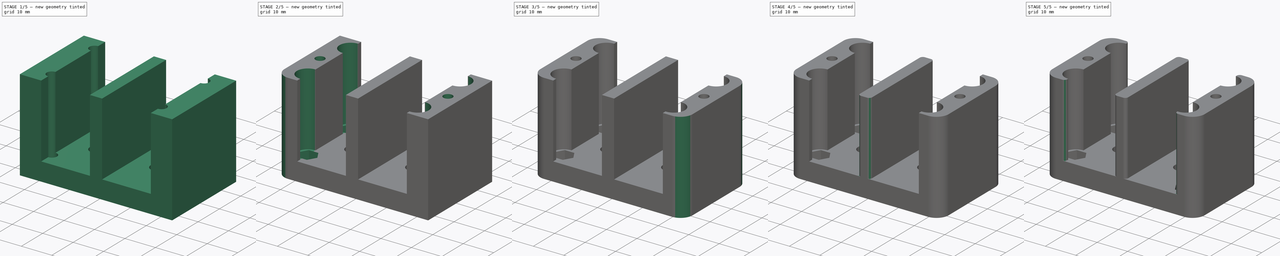
[diagram: build sequence overview — one tinted view per stage of 5, left to right]
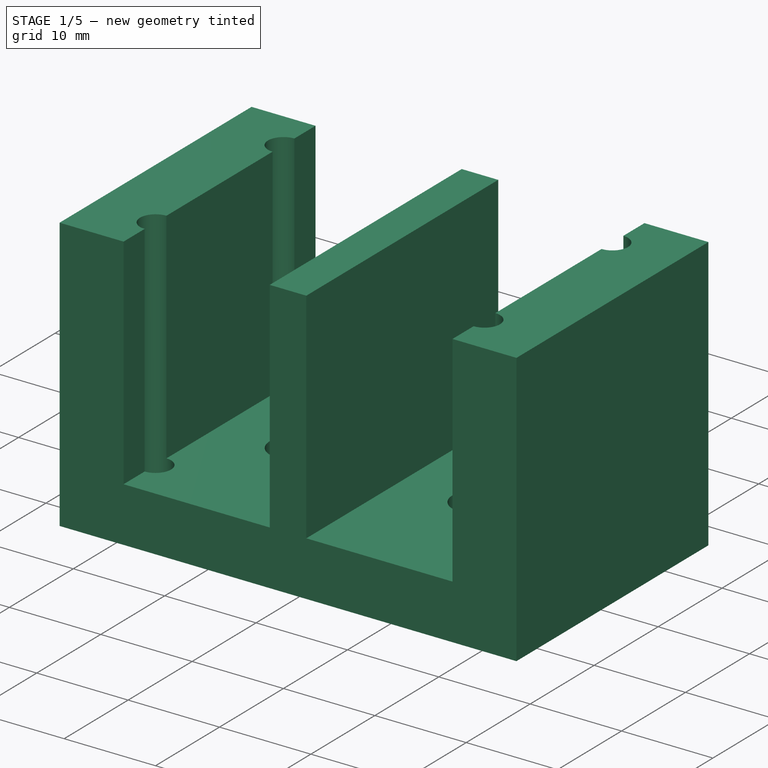
[diagram: stage 1 of 5 — iso view after this stage's code; geometry added in this stage tinted green]
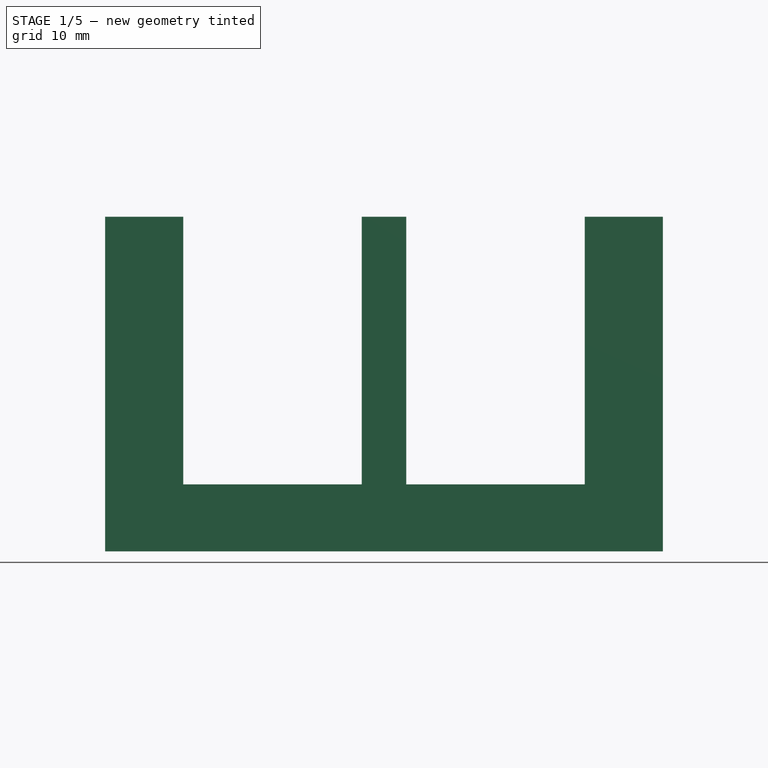
[diagram: stage 1 of 5 — front view after this stage's code; geometry added in this stage tinted green]
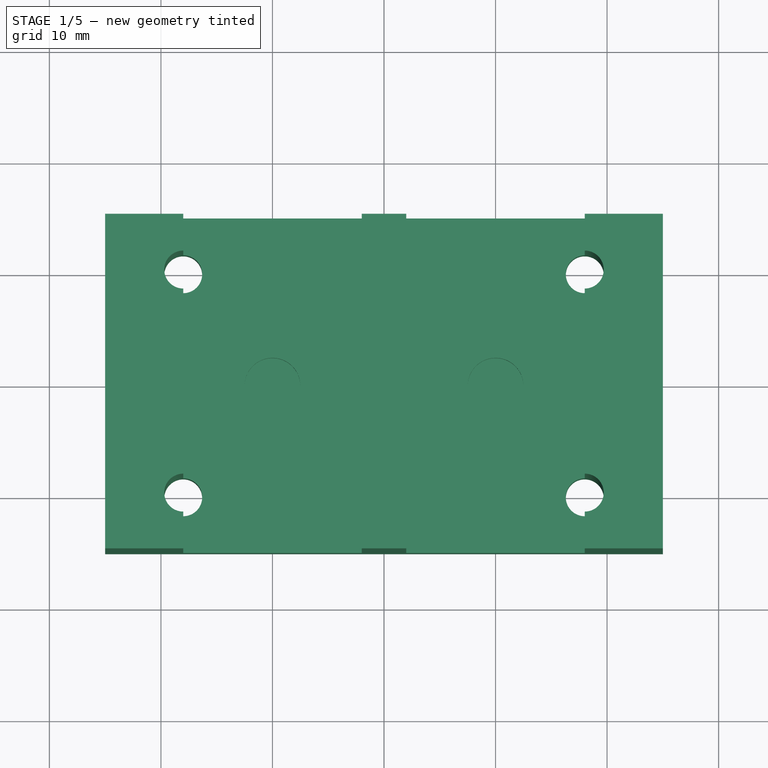
[diagram: stage 1 of 5 — top view after this stage's code; geometry added in this stage tinted green]
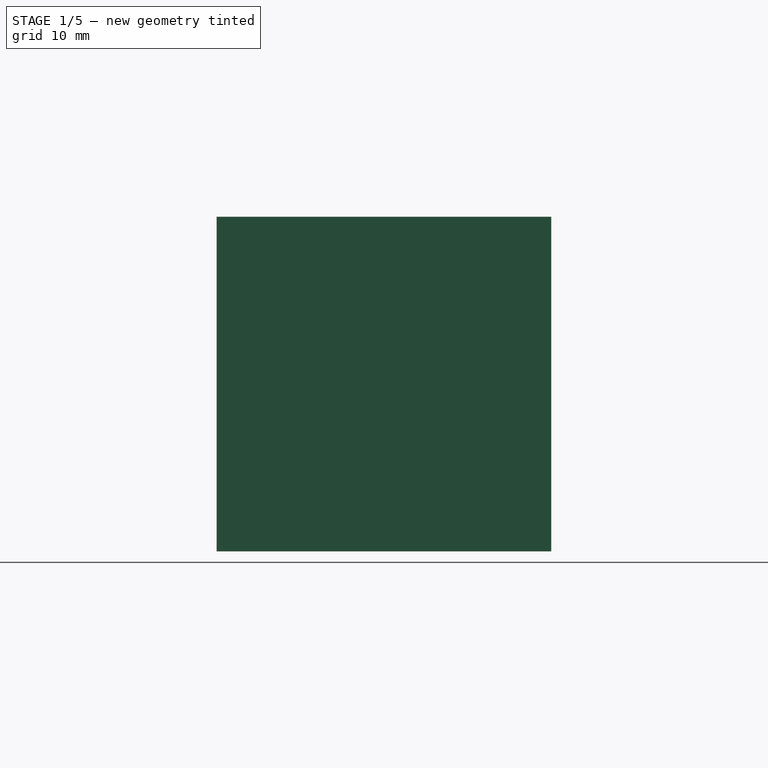
[diagram: stage 1 of 5 — right view after this stage's code; geometry added in this stage tinted green]
FCSTD DOCUMENT  (FreeCAD 0.16R6706 (Git))
Label: PowerBar
License: All rights reserved
LicenseURL: http://en.wikipedia.org/wiki/All_rights_reserved
objects: PartDesign::Fillet×12, Sketcher::SketchObject×7, PartDesign::Pocket×6, PartDesign::Pad×1
note: 33 computed .brp shape members not serialized (recipe doc carries the construction recipe); baked Part::Feature solids carry a one-line shape summary decoded from their .brp

FEATURE [Sketcher::SketchObject] Sketch
  sketch-geometry (29):
    g0: LineSegment StartX=-25 StartY=15 StartZ=0 EndX=25 EndY=15 EndZ=0
    g1: LineSegment StartX=25 StartY=15 StartZ=0 EndX=25 EndY=-15 EndZ=0
    g2: LineSegment StartX=25 StartY=-15 StartZ=0 EndX=-25 EndY=-15 EndZ=0
    g3: LineSegment StartX=-25 StartY=-15 StartZ=0 EndX=-25 EndY=15 EndZ=0
    g4: LineSegment [constr] StartX=-18 StartY=10 StartZ=0 EndX=18 EndY=10 EndZ=0
    g5: LineSegment [constr] StartX=18 StartY=10 StartZ=0 EndX=18 EndY=-10 EndZ=0
    g6: LineSegment [constr] StartX=18 StartY=-10 StartZ=0 EndX=-18 EndY=-10 EndZ=0
    g7: LineSegment [constr] StartX=-18 StartY=-10 StartZ=0 EndX=-18 EndY=10 EndZ=0
    g8: Circle CenterX=18 CenterY=10 CenterZ=0 NormalX=0 NormalY=0 NormalZ=1 Radius=1.7
    g9: Circle CenterX=18 CenterY=-10 CenterZ=0 NormalX=0 NormalY=0 NormalZ=1 Radius=1.7
    g10: Circle CenterX=-18 CenterY=-10 CenterZ=0 NormalX=0 NormalY=0 NormalZ=1 Radius=1.7
    g11: Circle CenterX=-18 CenterY=10 CenterZ=0 NormalX=0 NormalY=0 NormalZ=1 Radius=1.7
    g12: Circle [constr] CenterX=-10 CenterY=0 CenterZ=0 NormalX=0 NormalY=0 NormalZ=1 Radius=2.5
    g13: Circle [constr] CenterX=10 CenterY=0 CenterZ=0 NormalX=0 NormalY=0 NormalZ=1 Radius=2.5
    g14: LineSegment [constr] StartX=-12.3094 StartY=4 StartZ=0 EndX=-14.6188 EndY=0 EndZ=0
    g15: LineSegment [constr] StartX=-14.6188 StartY=0 StartZ=0 EndX=-12.3094 EndY=-4 EndZ=0
    g16: LineSegment [constr] StartX=-12.3094 StartY=-4 StartZ=0 EndX=-7.6906 EndY=-4 EndZ=0
    g17: LineSegment [constr] StartX=-7.6906 StartY=-4 StartZ=0 EndX=-5.3812 EndY=0 EndZ=0
    g18: LineSegment [constr] StartX=-5.3812 StartY=0 StartZ=0 EndX=-7.6906 EndY=4 EndZ=0
    g19: LineSegment [constr] StartX=-7.6906 StartY=4 StartZ=0 EndX=-12.3094 EndY=4 EndZ=0
    g20: Circle [constr] CenterX=-10 CenterY=0 CenterZ=0 NormalX=0 NormalY=0 NormalZ=1 Radius=4.6188
    g21: LineSegment [constr] StartX=7.6906 StartY=4 StartZ=0 EndX=5.3812 EndY=0 EndZ=0
    g22: LineSegment [constr] StartX=5.3812 StartY=0 StartZ=0 EndX=7.6906 EndY=-4 EndZ=0
    g23: LineSegment [constr] StartX=7.6906 StartY=-4 StartZ=0 EndX=12.3094 EndY=-4 EndZ=0
    g24: LineSegment [constr] StartX=12.3094 StartY=-4 StartZ=0 EndX=14.6188 EndY=0 EndZ=0
    g25: LineSegment [constr] StartX=14.6188 StartY=0 StartZ=0 EndX=12.3094 EndY=4 EndZ=0
    g26: LineSegment [constr] StartX=12.3094 StartY=4 StartZ=0 EndX=7.6906 EndY=4 EndZ=0
    g27: Circle [constr] CenterX=10 CenterY=0 CenterZ=0 NormalX=0 NormalY=0 NormalZ=1 Radius=4.6188
    g28: LineSegment [constr] StartX=-7.6906 StartY=-4 StartZ=0 EndX=7.6906 EndY=-4 EndZ=0
  constraints (70):
    c: Coincident(g0,g1)
    c: Coincident(g1,g2)
    c: Coincident(g2,g3)
    c: Coincident(g3,g0)
    c: Horizontal(g0)
    c: Horizontal(g2)
    c: Vertical(g1)
    c: Vertical(g3)
    c: Symmetric(g2,g0,g-1)
    c: Coincident(g4,g5)
    c: Coincident(g5,g6)
    c: Coincident(g6,g7)
    c: Coincident(g7,g4)
    c: Horizontal(g4)
    c: Horizontal(g6)
    c: Vertical(g5)
    c: Vertical(g7)
    c: Symmetric(g6,g4,g-1)
    c: DistanceX(g6,g5) = 36
    c: DistanceY(g5,g4) = 20
    c: Coincident(g8,g4)
    c: Coincident(g9,g5)
    c: Coincident(g11,g4)
    c: Radius(g10) = 1.7
    c: Equal(g10,g11)
    c: Equal(g10,g8)
    c: Equal(g10,g9)
    c: PointOnObject(g12,g-1)
    c: PointOnObject(g13,g-1)
    c: Radius(g12) = 2.5
    c: Equal(g12,g13)
    c: Coincident(g14,g15)
    c: Coincident(g15,g16)
    c: Coincident(g16,g17)
    c: Coincident(g17,g18)
    c: Coincident(g18,g19)
    c: Coincident(g19,g14)
    c: Equal(g14, g15-g19) x5
    c: PointOnObject(g14,g20)
    c: PointOnObject(g15,g20)
    c: PointOnObject(g16,g20)
    c: PointOnObject(g17,g20)
    c: PointOnObject(g18,g20)
    c: PointOnObject(g19,g20)
    c: Coincident(g20,g12)
    c: Coincident(g21,g22)
    c: Coincident(g22,g23)
    c: Coincident(g23,g24)
    c: Coincident(g24,g25)
    c: Coincident(g25,g26)
    c: Coincident(g26,g21)
    c: Equal(g21, g22-g26) x5
    c: PointOnObject(g21,g27)
    c: PointOnObject(g22,g27)
    c: PointOnObject(g23,g27)
    c: PointOnObject(g24,g27)
    c: PointOnObject(g25,g27)
    c: PointOnObject(g26,g27)
    c: Coincident(g27,g13)
    c: Horizontal(g16)
    c: Horizontal(g23)
    c: DistanceY(g16,g18) = 8
    c: Coincident(g28,g16)
    c: Coincident(g28,g22)
    c: Horizontal(g28)
    c: Symmetric(g13,g12,g-1)
    c: DistanceX(g12,g13) = 20
    c: DistanceY(g1,g0) = 30
    c: DistanceX(g2,g1) = 50
    c: DistanceX(g5,g1) = 7
FEATURE [PartDesign::Pad] Pad
  Length = 30
  Length2 = 100
  Sketch = -> Sketch
  Type = 0
FEATURE [Sketcher::SketchObject] Sketch001
  Placement = pos=(0,0,30) rot=(0,0,1;0rad)
  Support = -> Pad [Face10]
  sketch-geometry (10):
    g0: LineSegment StartX=-18 StartY=17.5 StartZ=0 EndX=-2 EndY=17.5 EndZ=0
    g1: LineSegment StartX=-2 StartY=17.5 StartZ=0 EndX=-2 EndY=-17.5 EndZ=0
    g2: LineSegment StartX=-2 StartY=-17.5 StartZ=0 EndX=-18 EndY=-17.5 EndZ=0
    g3: LineSegment StartX=-18 StartY=-17.5 StartZ=0 EndX=-18 EndY=17.5 EndZ=0
    g4: LineSegment StartX=2 StartY=17.5 StartZ=0 EndX=18 EndY=17.5 EndZ=0
    g5: LineSegment StartX=18 StartY=17.5 StartZ=0 EndX=18 EndY=-17.5 EndZ=0
    g6: LineSegment StartX=18 StartY=-17.5 StartZ=0 EndX=2 EndY=-17.5 EndZ=0
    g7: LineSegment StartX=2 StartY=-17.5 StartZ=0 EndX=2 EndY=17.5 EndZ=0
    g8: LineSegment [constr] StartX=-2 StartY=17.5 StartZ=0 EndX=2 EndY=17.5 EndZ=0
    g9: LineSegment [constr] StartX=-2 StartY=-17.5 StartZ=0 EndX=2 EndY=-17.5 EndZ=0
  constraints (28):
    c: Coincident(g0,g1)
    c: Coincident(g1,g2)
    c: Coincident(g2,g3)
    c: Coincident(g3,g0)
    c: Horizontal(g0)
    c: Horizontal(g2)
    c: Vertical(g1)
    c: Vertical(g3)
    c: Coincident(g4,g5)
    c: Coincident(g5,g6)
    c: Coincident(g6,g7)
    c: Coincident(g7,g4)
    c: Horizontal(g4)
    c: Horizontal(g6)
    c: Vertical(g5)
    c: Vertical(g7)
    c: DistanceX(g1,g6) = 4
    c: Coincident(g8,g0)
    c: Coincident(g8,g4)
    c: Coincident(g9,g1)
    c: Coincident(g9,g6)
    c: Horizontal(g9)
    c: Horizontal(g8)
    c: Symmetric(g1,g4,g-1)
    c: Symmetric(g2,g4,g-1)
    c: DistanceY(g5,g4) = 35
    c: DistanceX(g6,g5) = 16
    c: DistanceX(g6,g5) = 16
FEATURE [PartDesign::Pocket] Pocket
  Length = 24
  Sketch = -> Sketch001
  Type = 0
FEATURE [Sketcher::SketchObject] Sketch002
  Placement = pos=(0,0,0) rot=(1,0,0;3.14159rad)
  Support = -> Pocket [Face2]
  sketch-geometry (15):
    g0: LineSegment StartX=-12.3094 StartY=4 StartZ=0 EndX=-14.6188 EndY=0 EndZ=0
    g1: LineSegment StartX=-14.6188 StartY=0 StartZ=0 EndX=-12.3094 EndY=-4 EndZ=0
    g2: LineSegment StartX=-12.3094 StartY=-4 StartZ=0 EndX=-7.6906 EndY=-4 EndZ=0
    g3: LineSegment StartX=-7.6906 StartY=-4 StartZ=0 EndX=-5.3812 EndY=0 EndZ=0
    g4: LineSegment StartX=-5.3812 StartY=0 StartZ=0 EndX=-7.6906 EndY=4 EndZ=0
    g5: LineSegment StartX=-7.6906 StartY=4 StartZ=0 EndX=-12.3094 EndY=4 EndZ=0
    g6: Circle [constr] CenterX=-10 CenterY=0 CenterZ=0 NormalX=0 NormalY=0 NormalZ=1 Radius=4.6188
    g7: LineSegment StartX=7.6906 StartY=4 StartZ=0 EndX=5.3812 EndY=0 EndZ=0
    g8: LineSegment StartX=5.3812 StartY=0 StartZ=0 EndX=7.6906 EndY=-4 EndZ=0
    g9: LineSegment StartX=7.6906 StartY=-4 StartZ=0 EndX=12.3094 EndY=-4 EndZ=0
    g10: LineSegment StartX=12.3094 StartY=-4 StartZ=0 EndX=14.6188 EndY=0 EndZ=0
    g11: LineSegment StartX=14.6188 StartY=0 StartZ=0 EndX=12.3094 EndY=4 EndZ=0
    g12: LineSegment StartX=12.3094 StartY=4 StartZ=0 EndX=7.6906 EndY=4 EndZ=0
    g13: Circle [constr] CenterX=10 CenterY=0 CenterZ=0 NormalX=0 NormalY=0 NormalZ=1 Radius=4.6188
    g14: LineSegment [constr] StartX=-7.6906 StartY=-4 StartZ=0 EndX=7.6906 EndY=-4 EndZ=0
  constraints (36):
    c: Coincident(g0,g1)
    c: Coincident(g1,g2)
    c: Coincident(g2,g3)
    c: Coincident(g3,g4)
    c: Coincident(g4,g5)
    c: Coincident(g5,g0)
    c: Equal(g0, g1-g5) x5
    c: PointOnObject(g0,g6)
    c: PointOnObject(g1,g6)
    c: PointOnObject(g2,g6)
    c: PointOnObject(g3,g6)
    c: PointOnObject(g4,g6)
    c: PointOnObject(g5,g6)
    c: PointOnObject(g6,g-1)
    c: Coincident(g7,g8)
    c: Coincident(g8,g9)
    c: Coincident(g9,g10)
    c: Coincident(g10,g11)
    c: Coincident(g11,g12)
    c: Coincident(g12,g7)
    c: Equal(g7, g8-g12) x5
    c: PointOnObject(g7,g13)
    c: PointOnObject(g8,g13)
    c: PointOnObject(g9,g13)
    c: PointOnObject(g10,g13)
    c: PointOnObject(g11,g13)
    c: PointOnObject(g12,g13)
    c: PointOnObject(g13,g-1)
    c: Symmetric(g6,g13,g-1)
    c: Horizontal(g2)
    c: Horizontal(g9)
    c: Coincident(g14,g2)
    c: Coincident(g14,g8)
    c: Horizontal(g14)
    c: DistanceY(g9,g11) = 8
    c: DistanceX(g6,g13) = 20
FEATURE [PartDesign::Pocket] Pocket001
  Length = 4
  Sketch = -> Sketch002
  Type = 0
FEATURE [Sketcher::SketchObject] Sketch003
  Placement = pos=(0,0,6) rot=(0,0,1;0rad)
  Support = -> Pocket001 [Face10]
  sketch-geometry (2):
    g0: Circle CenterX=-10 CenterY=0 CenterZ=0 NormalX=0 NormalY=0 NormalZ=1 Radius=2.5
    g1: Circle CenterX=10 CenterY=0 CenterZ=0 NormalX=0 NormalY=0 NormalZ=1 Radius=2.5
  constraints (6):
    c: PointOnObject(g0,g-1)
    c: PointOnObject(g1,g-1)
    c: Radius(g0) = 2.5
    c: Equal(g0,g1)
    c: Symmetric(g1,g0,g-1)
    c: DistanceX(g0,g1) = 20
FEATURE [PartDesign::Pocket] Pocket002
  Length = 1.7
  Sketch = -> Sketch003
  Type = 0
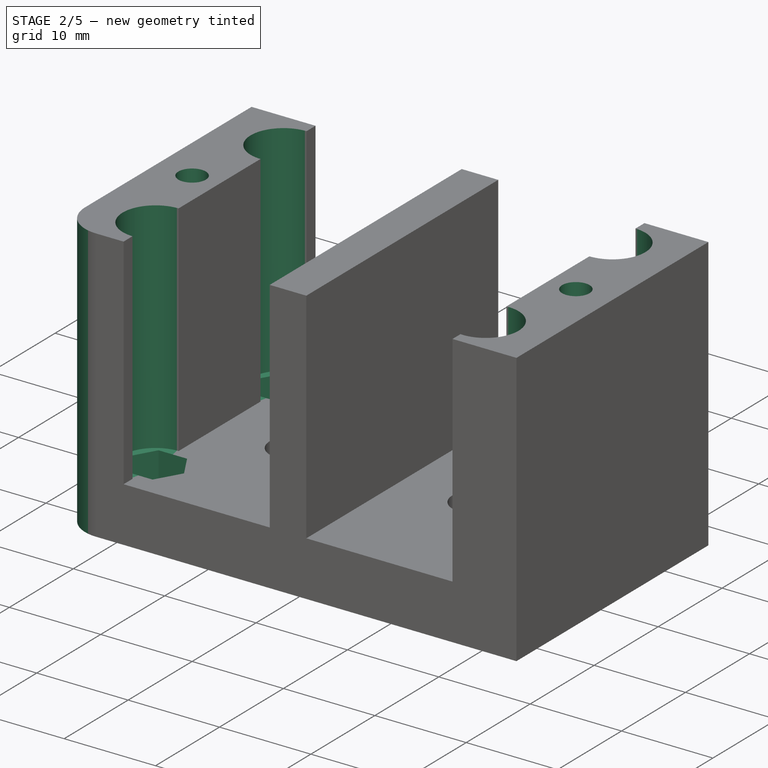
[diagram: stage 2 of 5 — iso view after this stage's code; geometry added in this stage tinted green]
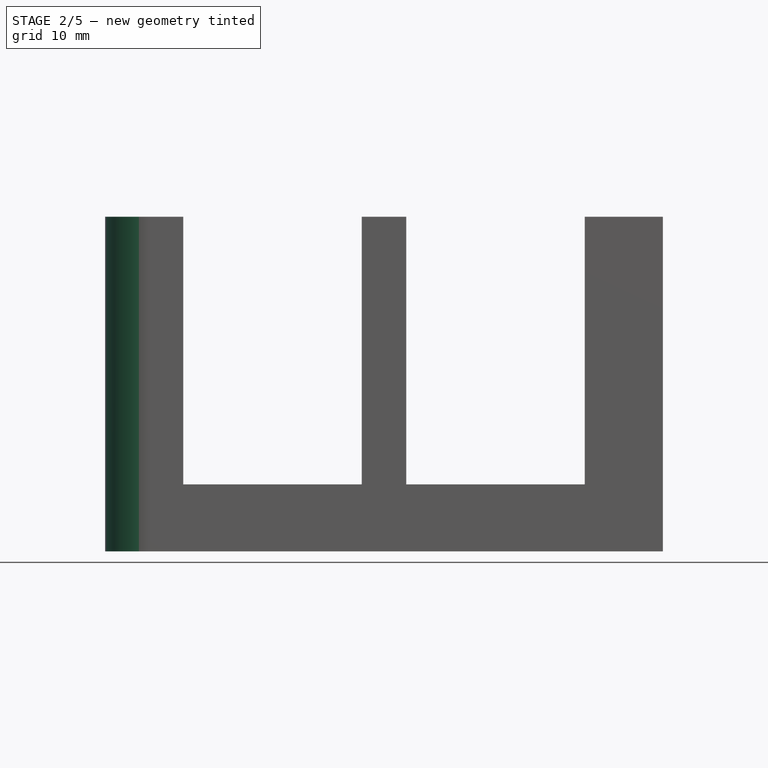
[diagram: stage 2 of 5 — front view after this stage's code; geometry added in this stage tinted green]
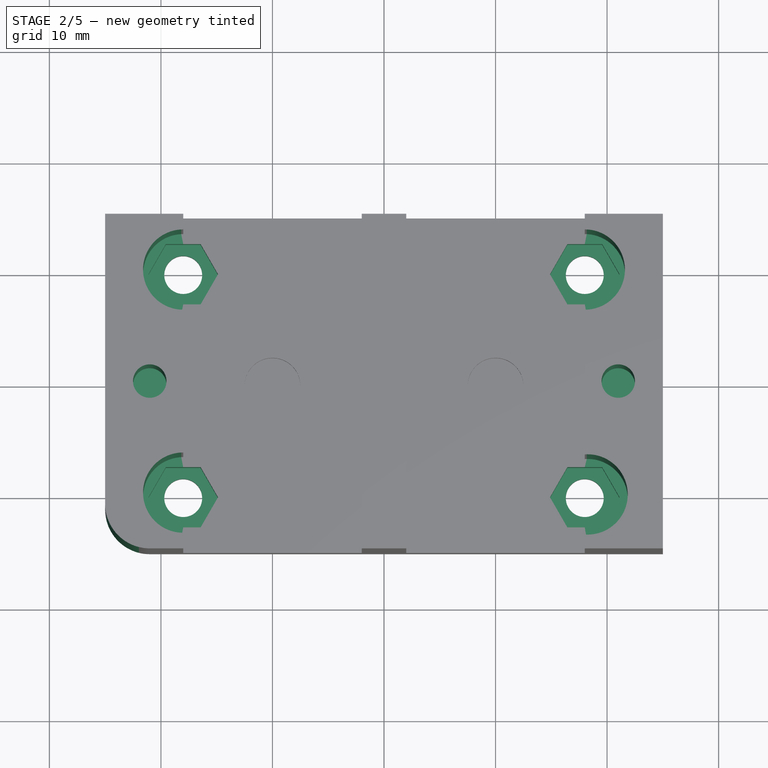
[diagram: stage 2 of 5 — top view after this stage's code; geometry added in this stage tinted green]
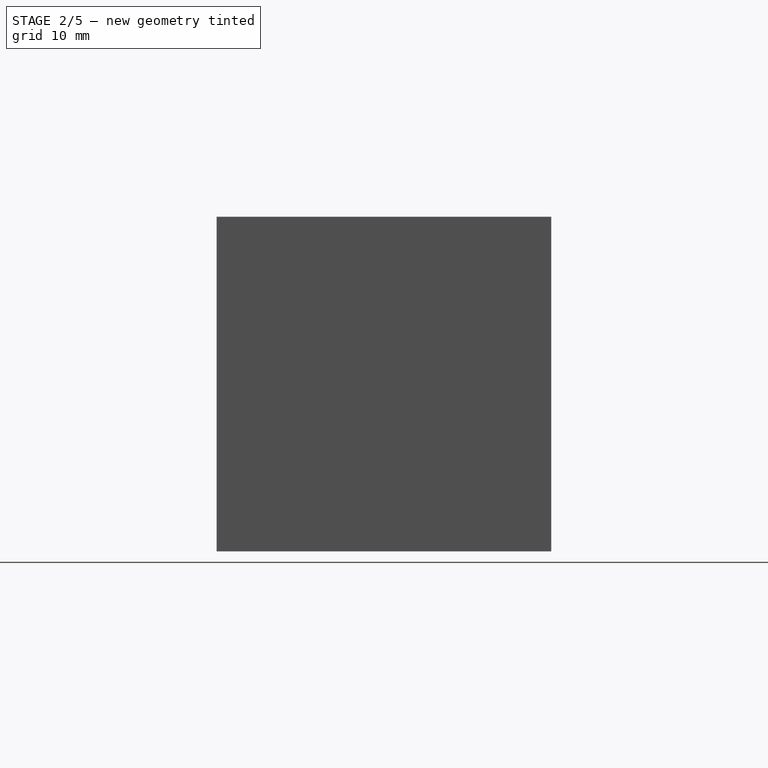
[diagram: stage 2 of 5 — right view after this stage's code; geometry added in this stage tinted green]
FEATURE [Sketcher::SketchObject] Sketch004
  Placement = pos=(0,0,30) rot=(0,0,1;0rad)
  Support = -> Pocket002 [Face4]
  sketch-geometry (8):
    g0: LineSegment [constr] StartX=-18 StartY=10 StartZ=0 EndX=18 EndY=10 EndZ=0
    g1: LineSegment [constr] StartX=18 StartY=10 StartZ=0 EndX=18 EndY=-10 EndZ=0
    g2: LineSegment [constr] StartX=18 StartY=-10 StartZ=0 EndX=-18 EndY=-10 EndZ=0
    g3: LineSegment [constr] StartX=-18 StartY=-10 StartZ=0 EndX=-18 EndY=10 EndZ=0
    g4: Circle CenterX=-18 CenterY=10 CenterZ=0 NormalX=0 NormalY=0 NormalZ=1 Radius=3.6
    g5: Circle CenterX=18 CenterY=10 CenterZ=0 NormalX=0 NormalY=0 NormalZ=1 Radius=3.6
    g6: Circle CenterX=-18 CenterY=-10 CenterZ=0 NormalX=0 NormalY=0 NormalZ=1 Radius=3.6
    g7: Circle CenterX=18.2513 CenterY=-10.165 CenterZ=0 NormalX=0 NormalY=0 NormalZ=1 Radius=3.6
  constraints (18):
    c: Coincident(g0,g1)
    c: Coincident(g1,g2)
    c: Coincident(g2,g3)
    c: Coincident(g3,g0)
    c: Horizontal(g0)
    c: Horizontal(g2)
    c: Vertical(g1)
    c: Vertical(g3)
    c: Symmetric(g2,g0,g-1)
    c: DistanceY(g1,g0) = 20
    c: DistanceX(g0,g0) = 36
    c: Coincident(g4,g0)
    c: Coincident(g5,g0)
    c: Coincident(g6,g2)
    c: Radius(g6) = 3.6
    c: Equal(g6,g7)
    c: Equal(g6,g5)
    c: Equal(g6,g4)
FEATURE [PartDesign::Pocket] Pocket003
  Length = 24
  Sketch = -> Sketch004
  Type = 0
FEATURE [Sketcher::SketchObject] Sketch005
  Placement = pos=(0,0,6) rot=(0,0,1;0rad)
  Support = -> Pocket003 [Face10]
  sketch-geometry (32):
    g0: LineSegment [constr] StartX=-18 StartY=10 StartZ=0 EndX=18 EndY=10 EndZ=0
    g1: LineSegment [constr] StartX=18 StartY=10 StartZ=0 EndX=18 EndY=-10 EndZ=0
    g2: LineSegment [constr] StartX=18 StartY=-10 StartZ=0 EndX=-18 EndY=-10 EndZ=0
    g3: LineSegment [constr] StartX=-18 StartY=-10 StartZ=0 EndX=-18 EndY=10 EndZ=0
    g4: LineSegment StartX=-19.5588 StartY=12.7 StartZ=0 EndX=-21.1177 EndY=10 EndZ=0
    g5: LineSegment StartX=-21.1177 StartY=10 StartZ=0 EndX=-19.5588 EndY=7.3 EndZ=0
    g6: LineSegment StartX=-19.5588 StartY=7.3 StartZ=0 EndX=-16.4412 EndY=7.3 EndZ=0
    g7: LineSegment StartX=-16.4412 StartY=7.3 StartZ=0 EndX=-14.8823 EndY=10 EndZ=0
    g8: LineSegment StartX=-14.8823 StartY=10 StartZ=0 EndX=-16.4412 EndY=12.7 EndZ=0
    g9: LineSegment StartX=-16.4412 StartY=12.7 StartZ=0 EndX=-19.5588 EndY=12.7 EndZ=0
    g10: Circle [constr] CenterX=-18 CenterY=10 CenterZ=0 NormalX=0 NormalY=0 NormalZ=1 Radius=3.11769
    g11: LineSegment StartX=16.4412 StartY=12.7 StartZ=0 EndX=14.8823 EndY=10 EndZ=0
    g12: LineSegment StartX=14.8823 StartY=10 StartZ=0 EndX=16.4412 EndY=7.3 EndZ=0
    g13: LineSegment StartX=16.4412 StartY=7.3 StartZ=0 EndX=19.5588 EndY=7.3 EndZ=0
    g14: LineSegment StartX=19.5588 StartY=7.3 StartZ=0 EndX=21.1177 EndY=10 EndZ=0
    g15: LineSegment StartX=21.1177 StartY=10 StartZ=0 EndX=19.5588 EndY=12.7 EndZ=0
    g16: LineSegment StartX=19.5588 StartY=12.7 StartZ=0 EndX=16.4412 EndY=12.7 EndZ=0
    g17: Circle [constr] CenterX=18 CenterY=10 CenterZ=0 NormalX=0 NormalY=0 NormalZ=1 Radius=3.11769
    g18: LineSegment StartX=16.4412 StartY=-7.3 StartZ=0 EndX=14.8823 EndY=-10 EndZ=0
    g19: LineSegment StartX=14.8823 StartY=-10 StartZ=0 EndX=16.4412 EndY=-12.7 EndZ=0
    g20: LineSegment StartX=16.4412 StartY=-12.7 StartZ=0 EndX=19.5588 EndY=-12.7 EndZ=0
    g21: LineSegment StartX=19.5588 StartY=-12.7 StartZ=0 EndX=21.1177 EndY=-10 EndZ=0
    g22: LineSegment StartX=21.1177 StartY=-10 StartZ=0 EndX=19.5588 EndY=-7.3 EndZ=0
    g23: LineSegment StartX=19.5588 StartY=-7.3 StartZ=0 EndX=16.4412 EndY=-7.3 EndZ=0
    g24: Circle [constr] CenterX=18 CenterY=-10 CenterZ=0 NormalX=0 NormalY=0 NormalZ=1 Radius=3.11769
    g25: LineSegment StartX=-21.1177 StartY=-10 StartZ=0 EndX=-19.5588 EndY=-12.7 EndZ=0
    g26: LineSegment StartX=-19.5588 StartY=-12.7 StartZ=0 EndX=-16.4412 EndY=-12.7 EndZ=0
    g27: LineSegment StartX=-16.4412 StartY=-12.7 StartZ=0 EndX=-14.8823 EndY=-10 EndZ=0
    g28: LineSegment StartX=-14.8823 StartY=-10 StartZ=0 EndX=-16.4412 EndY=-7.3 EndZ=0
    g29: LineSegment StartX=-16.4412 StartY=-7.3 StartZ=0 EndX=-19.5588 EndY=-7.3 EndZ=0
    g30: LineSegment StartX=-19.5588 StartY=-7.3 StartZ=0 EndX=-21.1177 EndY=-10 EndZ=0
    g31: Circle [constr] CenterX=-18 CenterY=-10 CenterZ=0 NormalX=0 NormalY=0 NormalZ=1 Radius=3.11769
  constraints (75):
    c: Coincident(g0,g1)
    c: Coincident(g1,g2)
    c: Coincident(g2,g3)
    c: Coincident(g3,g0)
    c: Horizontal(g0)
    c: Horizontal(g2)
    c: Vertical(g1)
    c: Vertical(g3)
    c: Symmetric(g2,g0,g-1)
    c: DistanceY(g1,g0) = 20
    c: DistanceX(g0,g0) = 36
    c: Coincident(g4,g5)
    c: Coincident(g5,g6)
    c: Coincident(g6,g7)
    c: Coincident(g7,g8)
    c: Coincident(g8,g9)
    c: Coincident(g9,g4)
    c: Equal(g4, g5-g9) x5
    c: PointOnObject(g4,g10)
    c: PointOnObject(g5,g10)
    c: PointOnObject(g6,g10)
    c: PointOnObject(g7,g10)
    c: PointOnObject(g8,g10)
    c: PointOnObject(g9,g10)
    c: Coincident(g10,g0)
    c: Coincident(g11,g12)
    c: Coincident(g12,g13)
    c: Coincident(g13,g14)
    c: Coincident(g14,g15)
    c: Coincident(g15,g16)
    c: Coincident(g16,g11)
    c: Equal(g11, g12-g16) x5
    c: PointOnObject(g11,g17)
    c: PointOnObject(g12,g17)
    c: PointOnObject(g13,g17)
    c: PointOnObject(g14,g17)
    c: PointOnObject(g15,g17)
    c: PointOnObject(g16,g17)
    c: Coincident(g17,g0)
    c: Coincident(g18,g19)
    c: Coincident(g19,g20)
    c: Coincident(g20,g21)
    c: Coincident(g21,g22)
    c: Coincident(g22,g23)
    c: Coincident(g23,g18)
    c: Equal(g18, g19-g23) x5
    c: PointOnObject(g18,g24)
    c: PointOnObject(g19,g24)
    c: PointOnObject(g20,g24)
    c: PointOnObject(g21,g24)
    c: PointOnObject(g22,g24)
    c: PointOnObject(g23,g24)
    c: Coincident(g24,g1)
    c: Coincident(g25,g26)
    c: Coincident(g26,g27)
    c: Coincident(g27,g28)
    c: Coincident(g28,g29)
    c: Coincident(g29,g30)
    c: Coincident(g30,g25)
    c: Equal(g25, g26-g30) x5
    c: PointOnObject(g25,g31)
    c: PointOnObject(g26,g31)
    c: PointOnObject(g27,g31)
    c: PointOnObject(g28,g31)
    c: PointOnObject(g29,g31)
    c: PointOnObject(g30,g31)
    c: Coincident(g31,g2)
    c: Horizontal(g26)
    c: Horizontal(g6)
    c: Horizontal(g13)
    c: Horizontal(g20)
    c: Equal(g31,g10)
    c: Equal(g10,g17)
    c: Equal(g17,g24)
    c: DistanceY(g26,g28) = 5.4
FEATURE [PartDesign::Pocket] Pocket004
  Length = 4
  Sketch = -> Sketch005
  Type = 0
FEATURE [Sketcher::SketchObject] Sketch006
  Placement = pos=(0,0,30) rot=(0,0,1;0rad)
  Support = -> Pocket004 [Face12]
  sketch-geometry (2):
    g0: Circle CenterX=-21 CenterY=0 CenterZ=0 NormalX=0 NormalY=0 NormalZ=1 Radius=1.5
    g1: Circle CenterX=21 CenterY=0 CenterZ=0 NormalX=0 NormalY=0 NormalZ=1 Radius=1.5
  constraints (5):
    c: PointOnObject(g0,g-1)
    c: Symmetric(g1,g0,g-1)
    c: Radius(g0) = 1.5
    c: Equal(g0,g1)
    c: DistanceX(g0,g1) = 42
FEATURE [PartDesign::Pocket] Pocket005
  Length = 20
  Sketch = -> Sketch006
  Type = 0
FEATURE [PartDesign::Fillet] Fillet
  Base = -> Pocket005 [Edge76]
  Radius = 4
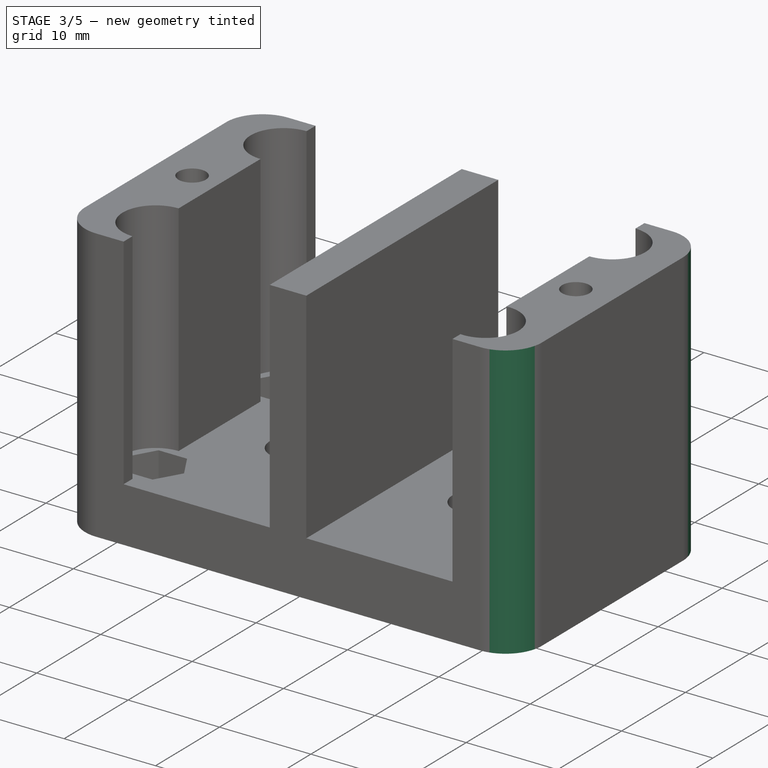
[diagram: stage 3 of 5 — iso view after this stage's code; geometry added in this stage tinted green]
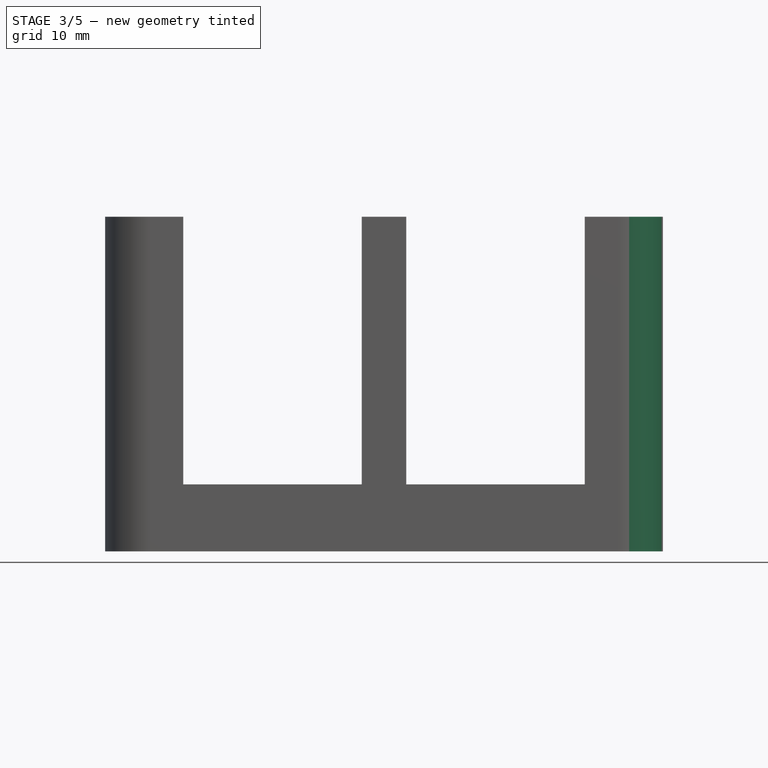
[diagram: stage 3 of 5 — front view after this stage's code; geometry added in this stage tinted green]
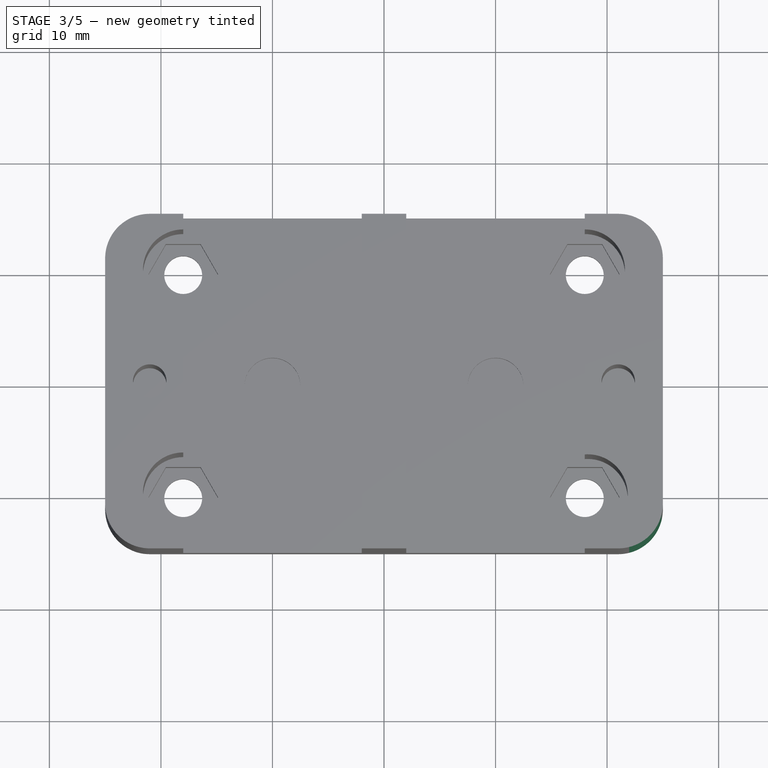
[diagram: stage 3 of 5 — top view after this stage's code; geometry added in this stage tinted green]
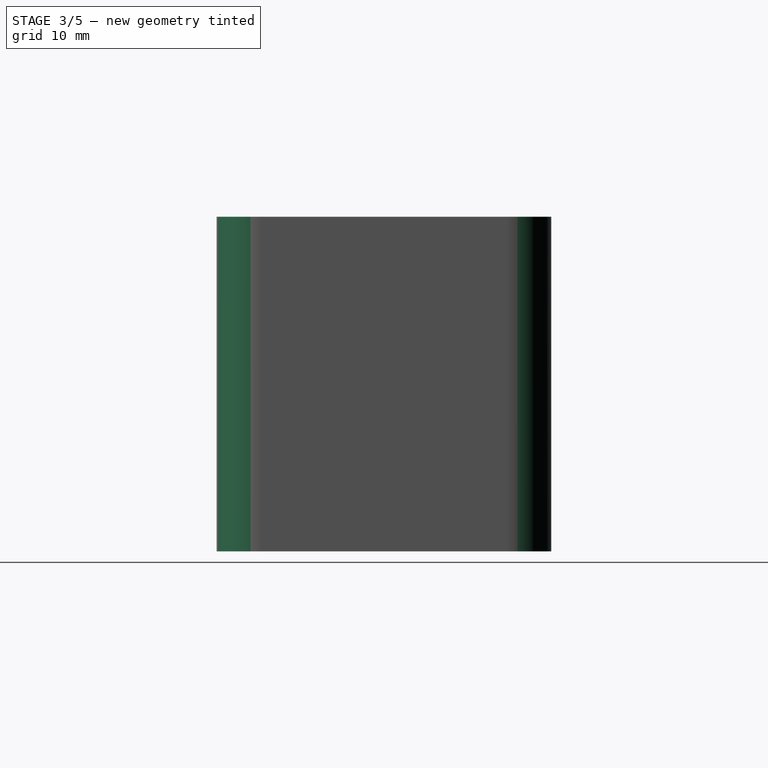
[diagram: stage 3 of 5 — right view after this stage's code; geometry added in this stage tinted green]
FEATURE [PartDesign::Fillet] Fillet001
  Base = -> Fillet [Edge37]
  Radius = 4
FEATURE [PartDesign::Fillet] Fillet002
  Base = -> Fillet001 [Edge38]
  Radius = 4
FEATURE [PartDesign::Fillet] Fillet003
  Base = -> Fillet002 [Edge31]
  Radius = 4
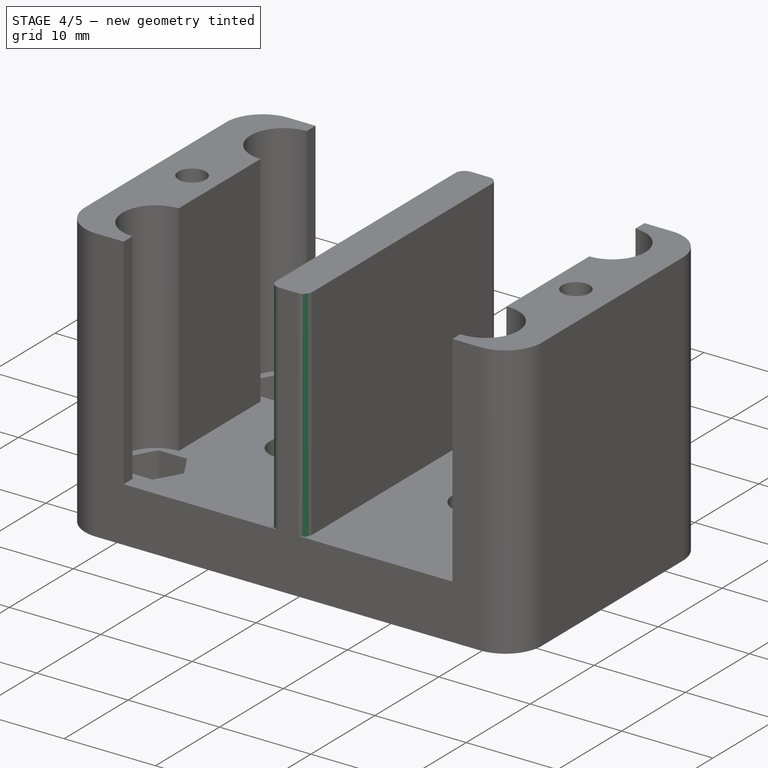
[diagram: stage 4 of 5 — iso view after this stage's code; geometry added in this stage tinted green]
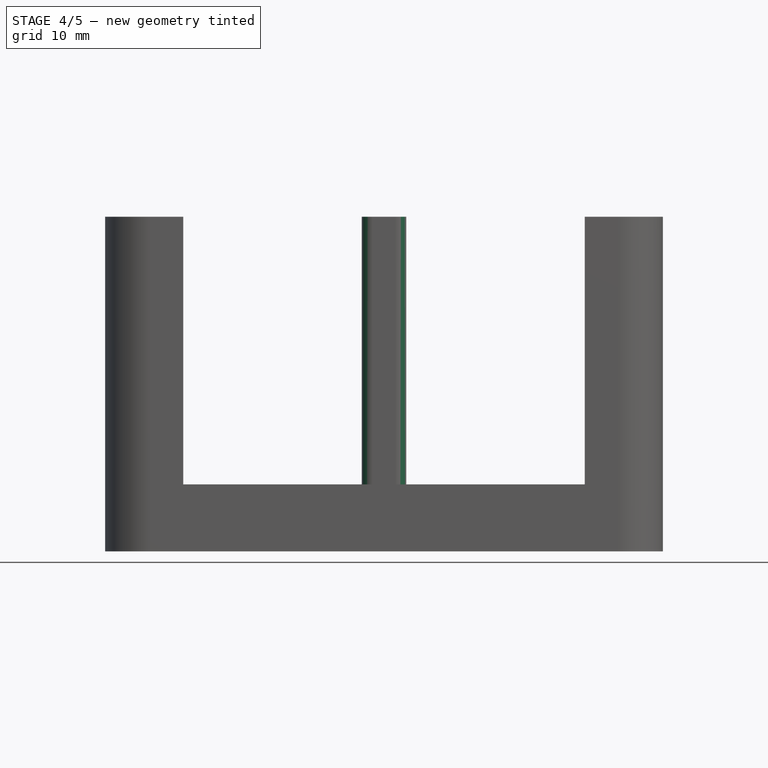
[diagram: stage 4 of 5 — front view after this stage's code; geometry added in this stage tinted green]
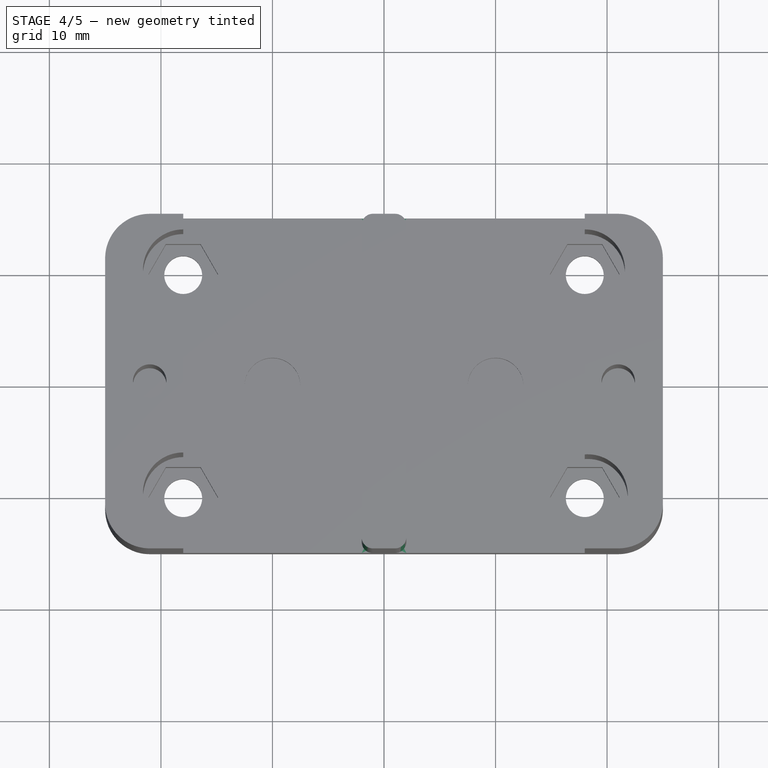
[diagram: stage 4 of 5 — top view after this stage's code; geometry added in this stage tinted green]
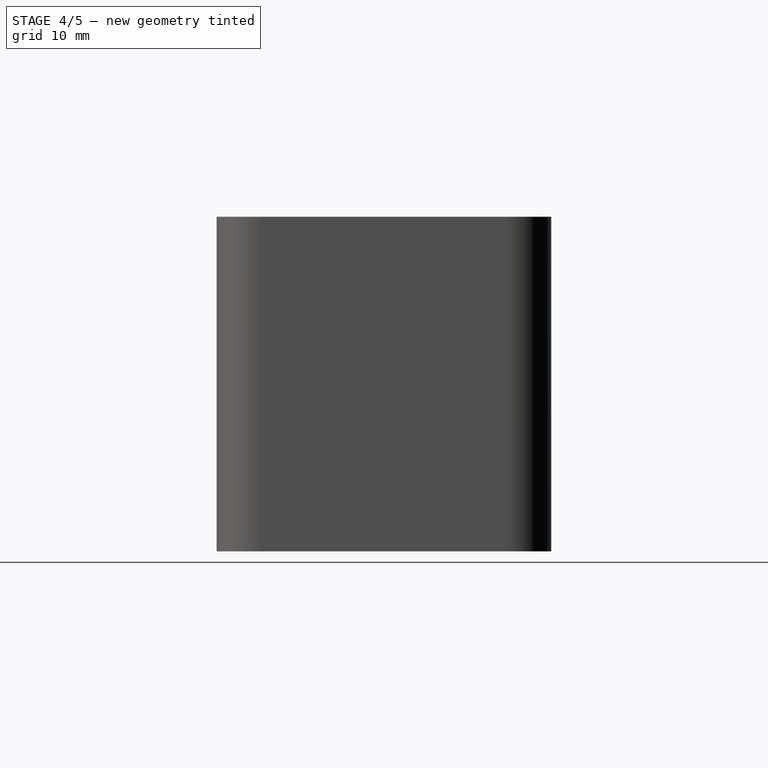
[diagram: stage 4 of 5 — right view after this stage's code; geometry added in this stage tinted green]
FEATURE [PartDesign::Fillet] Fillet004
  Base = -> Fillet003 [Edge55]
  Radius = 1
FEATURE [PartDesign::Fillet] Fillet005
  Base = -> Fillet004 [Edge3]
  Radius = 1
FEATURE [PartDesign::Fillet] Fillet006
  Base = -> Fillet005 [Edge92]
  Radius = 1
FEATURE [PartDesign::Fillet] Fillet007
  Base = -> Fillet006 [Edge15]
  Radius = 1
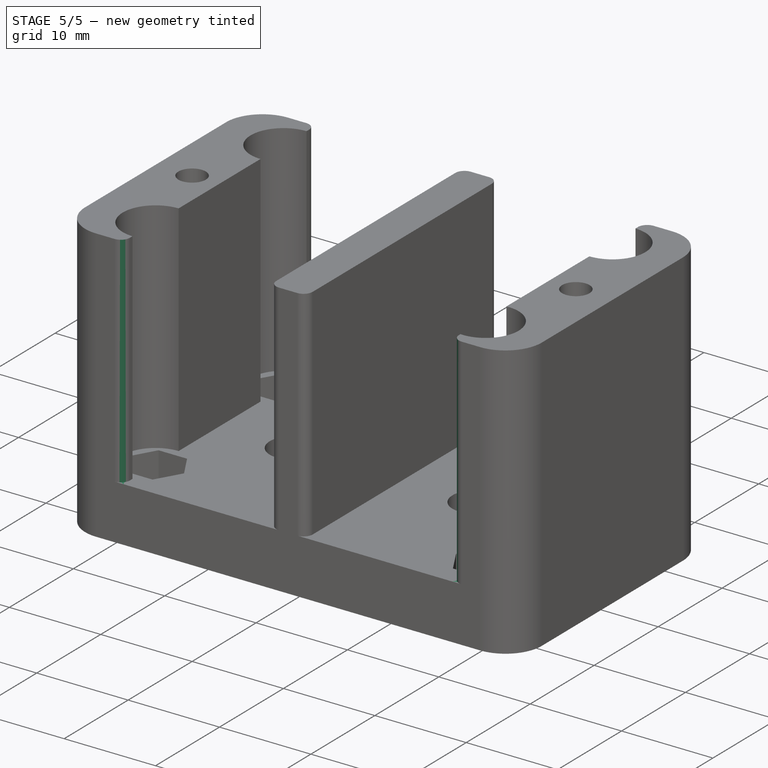
[diagram: stage 5 of 5 — iso view after this stage's code; geometry added in this stage tinted green]
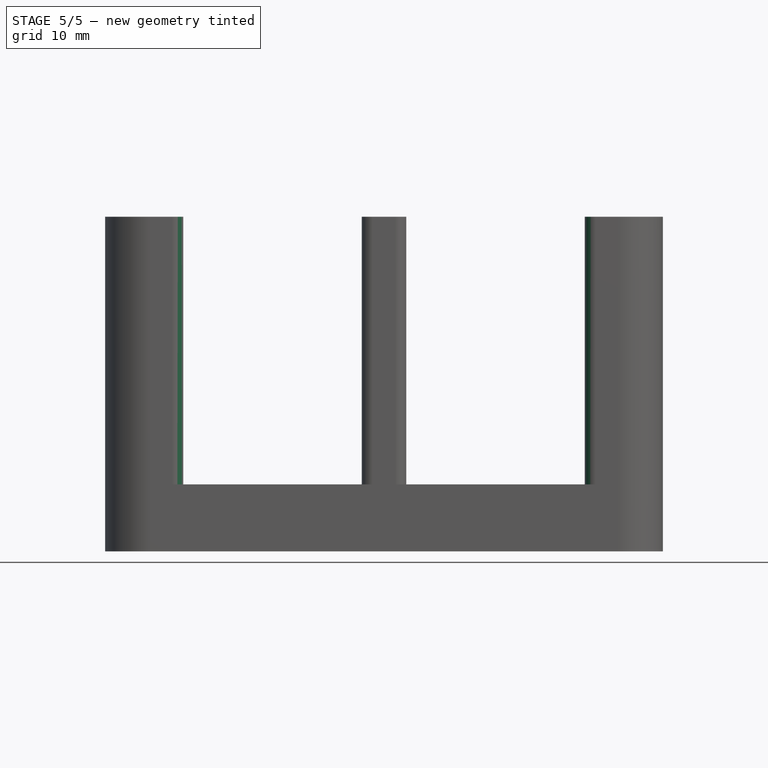
[diagram: stage 5 of 5 — front view after this stage's code; geometry added in this stage tinted green]
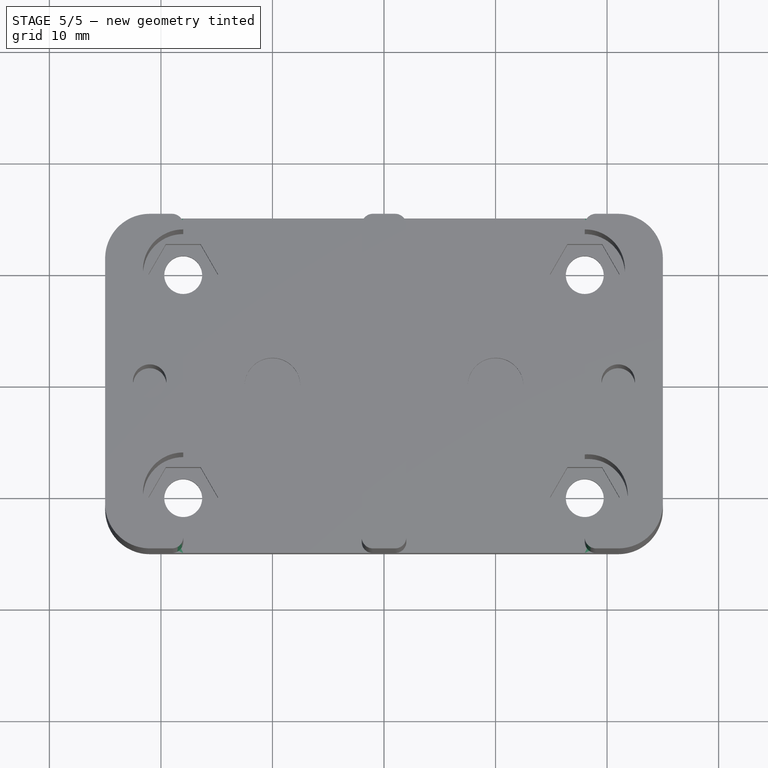
[diagram: stage 5 of 5 — top view after this stage's code; geometry added in this stage tinted green]
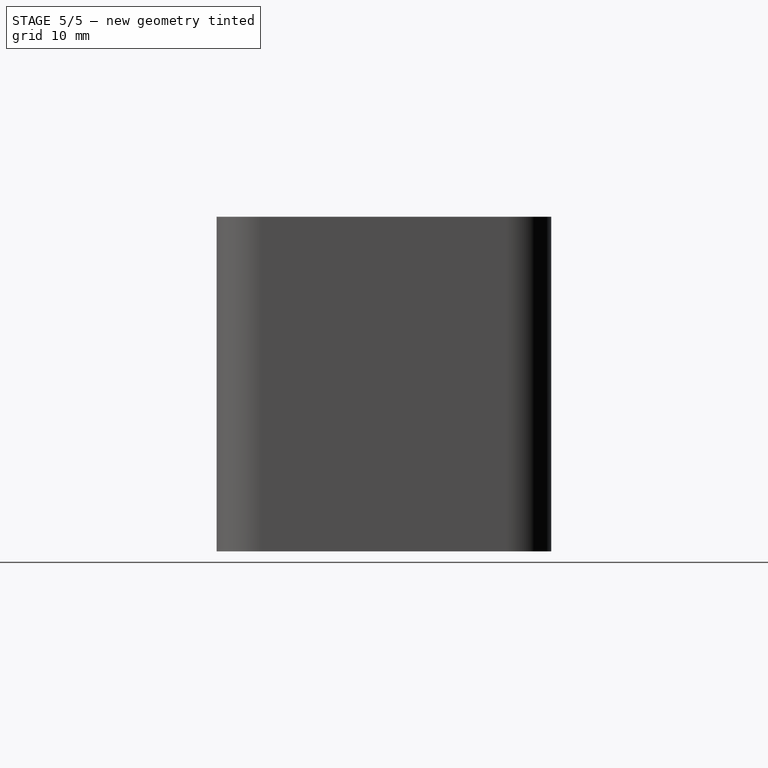
[diagram: stage 5 of 5 — right view after this stage's code; geometry added in this stage tinted green]
FEATURE [PartDesign::Fillet] Fillet008
  Base = -> Fillet007 [Edge15]
  Radius = 1
FEATURE [PartDesign::Fillet] Fillet009
  Base = -> Fillet008 [Edge11]
  Radius = 1
FEATURE [PartDesign::Fillet] Fillet010
  Base = -> Fillet009 [Edge112]
  Radius = 1
FEATURE [PartDesign::Fillet] Fillet011
  Base = -> Fillet010 [Edge23]
  Radius = 1
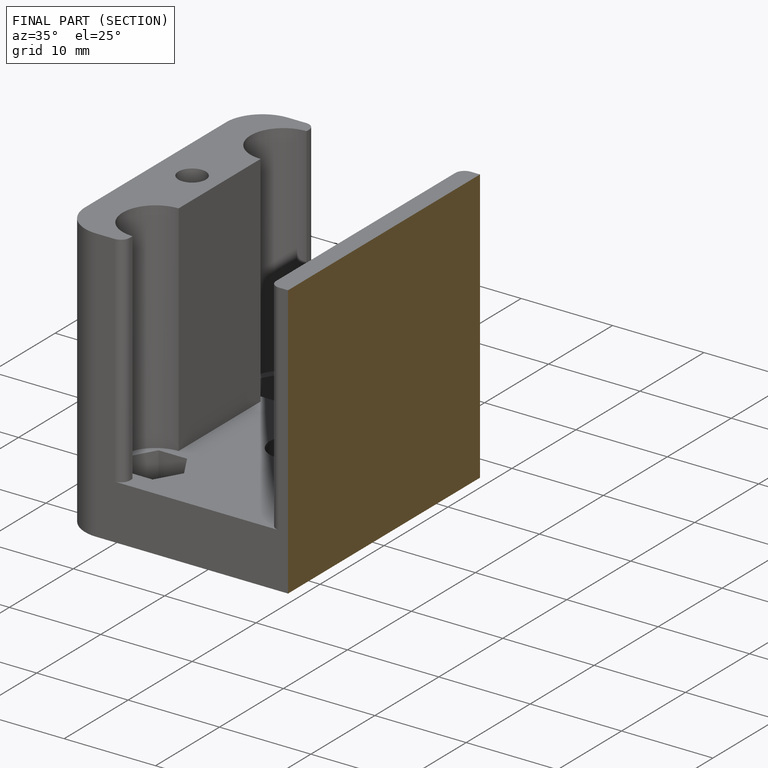
[diagram: finished part — half-section view (interior)]
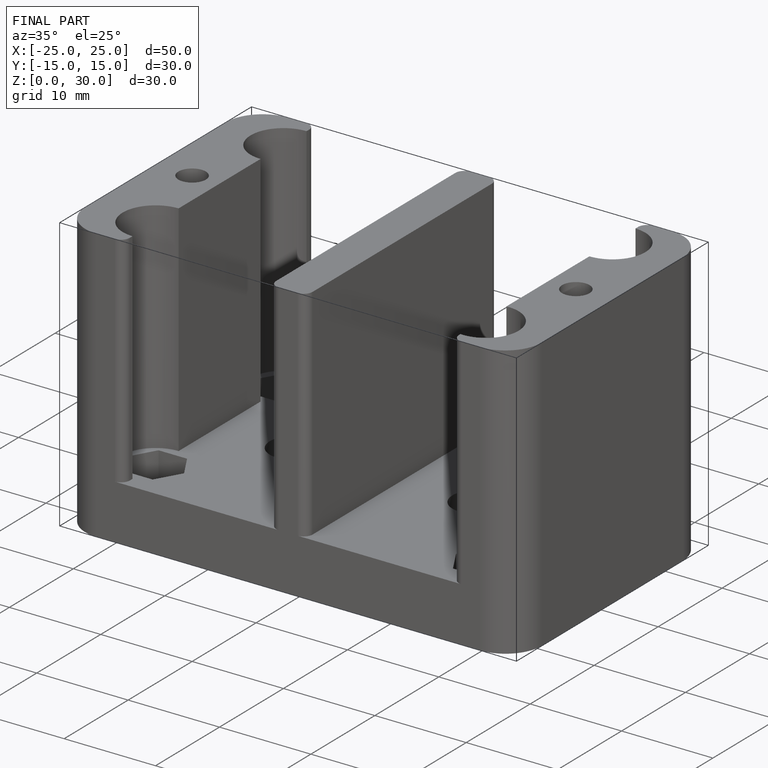
[diagram: finished part — iso view with bounding-box wireframe]
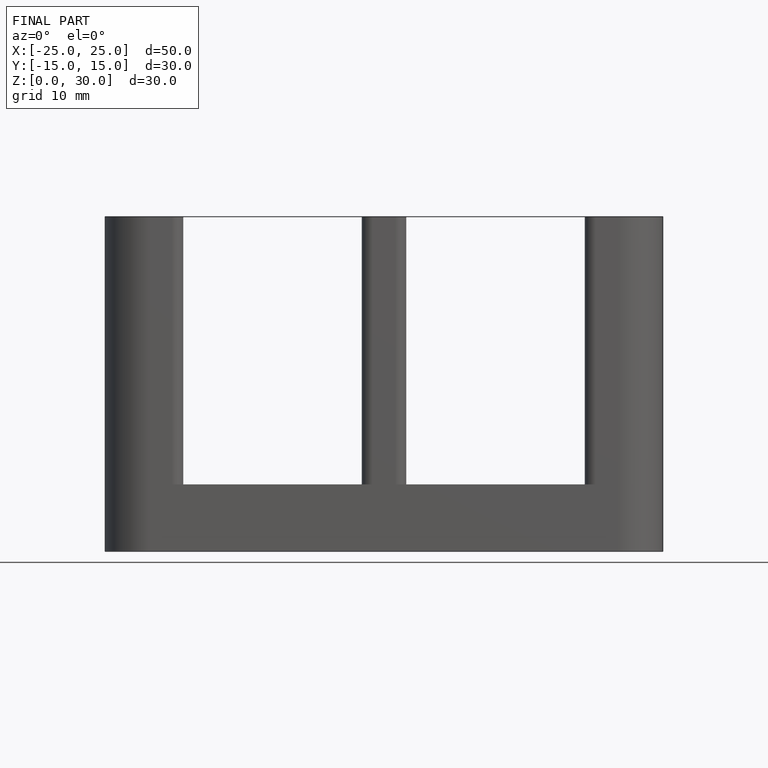
[diagram: finished part — front view with bounding-box wireframe]
